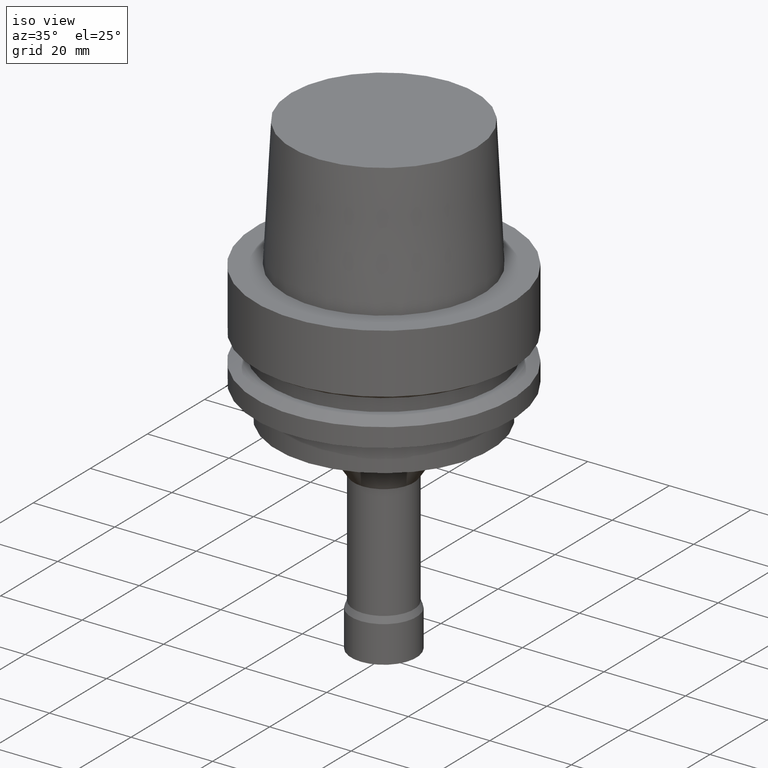
[diagram: clean part render]
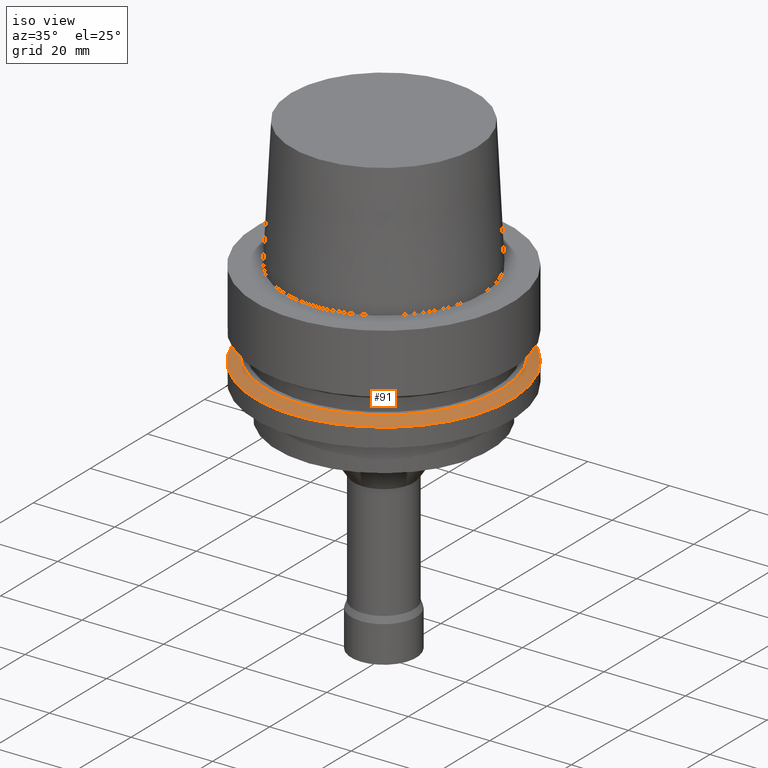
[diagram: same view with one face highlighted and labeled with its STEP entity id]
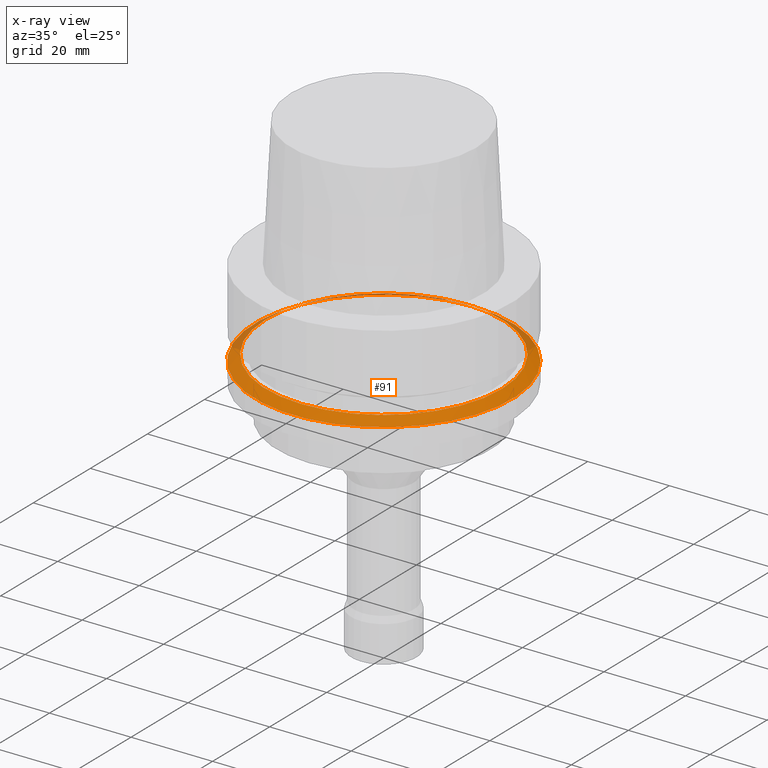
[diagram: x-ray of the same camera — body ghosted, the highlighted face saturated]
A machine part, iso view. The second image highlights one B-rep face of the part: STEP entity #91.
The next image is the same camera in x-ray: the body ghosted, the highlighted face saturated — about 12% of this face is hidden behind the body in this view.
In plain terms, the highlighted conical surface has half-angle 60 deg.
Its self-contained STEP definition (entity closure, byte-faithful):
#91=ADVANCED_FACE('',(#142,#143),#144,.T.);
#142=FACE_BOUND('',#197,.T.);
#143=FACE_BOUND('',#198,.T.);
#144=CONICAL_SURFACE('',#199,30.19879763,1.04719755326565);
#197=EDGE_LOOP('',(#284));
#198=EDGE_LOOP('',(#285));
#199=AXIS2_PLACEMENT_3D('',#286,#287,#288);
#284=ORIENTED_EDGE('',*,*,#307,.F.);
#285=ORIENTED_EDGE('',*,*,#314,.T.);
#286=CARTESIAN_POINT('',(1.26299352357262E-015,2.52598704714523E-015,-20.626249535));
#287=DIRECTION('',(6.12323399573677E-017,1.22464679914735E-016,-1.0));
#288=DIRECTION('',(-1.23259516440783E-032,1.0,1.22464679914735E-016));
#307=EDGE_CURVE('',#334,#334,#335,.T.);
#314=EDGE_CURVE('',#348,#348,#349,.T.);
#334=VERTEX_POINT('',#370);
#335=CIRCLE('',#371,31.5);
#348=VERTEX_POINT('',#384);
#349=CIRCLE('',#385,28.89759526);
#370=CARTESIAN_POINT('',(1.30899429049255E-015,31.5,-21.37749907));
#371=AXIS2_PLACEMENT_3D('',#415,#416,#417);
#384=CARTESIAN_POINT('',(1.21699275665268E-015,28.89759526,-19.875));
#385=AXIS2_PLACEMENT_3D('',#436,#437,#438);
#415=CARTESIAN_POINT('',(1.30899429049255E-015,2.6179885809851E-015,-21.37749907));
#416=DIRECTION('',(6.12323399573677E-017,1.22464679914735E-016,-1.0));
#417=DIRECTION('',(-1.23259516440783E-032,1.0,1.22464679914735E-016));
#436=CARTESIAN_POINT('',(1.21699275665268E-015,2.43398551330536E-015,-19.875));
#437=DIRECTION('',(6.12323399573677E-017,1.22464679914735E-016,-1.0));
#438=DIRECTION('',(-1.23259516440783E-032,1.0,1.22464679914735E-016));